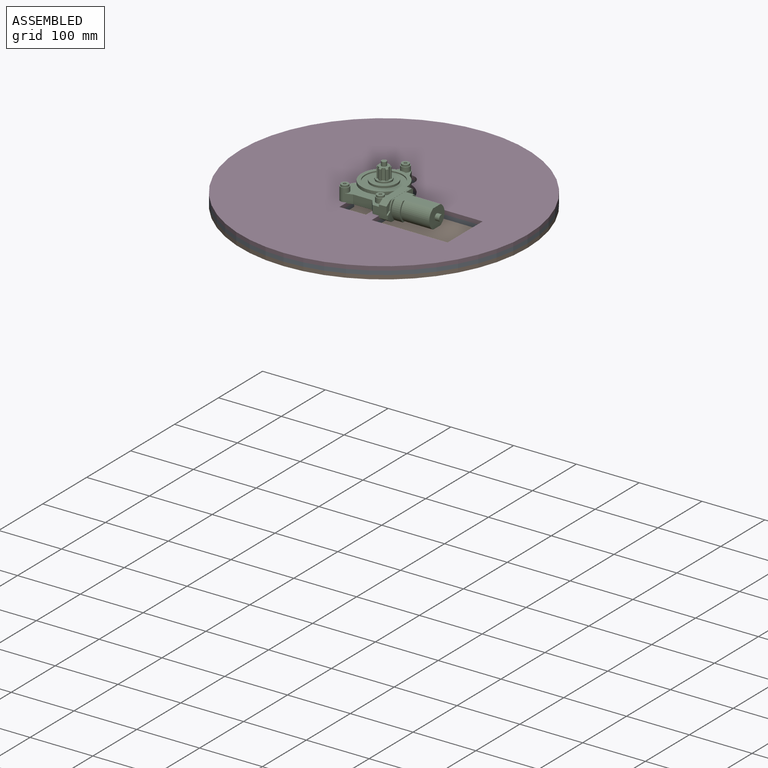
[diagram: assembled view]
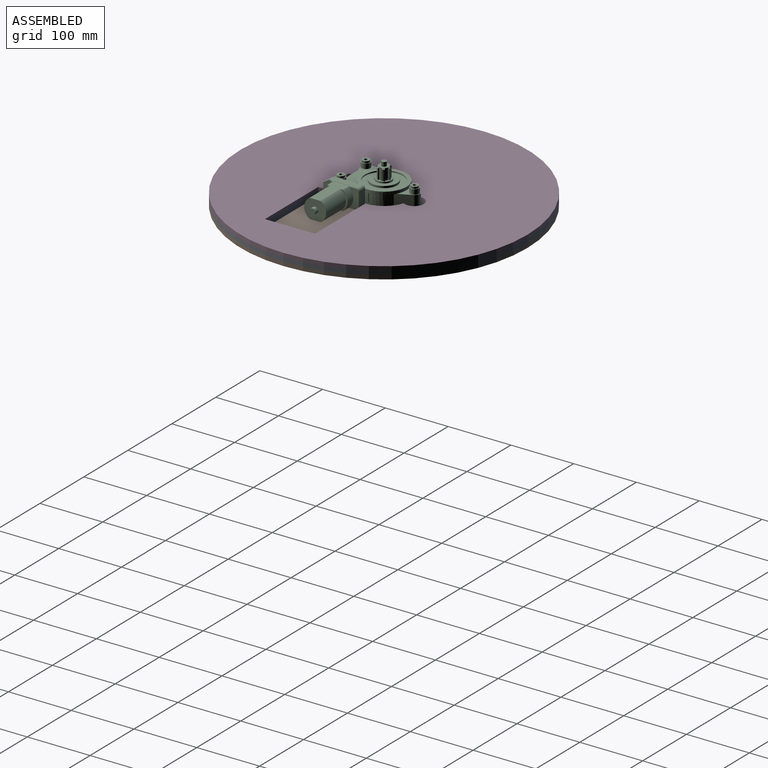
[diagram: assembled view, second angle]
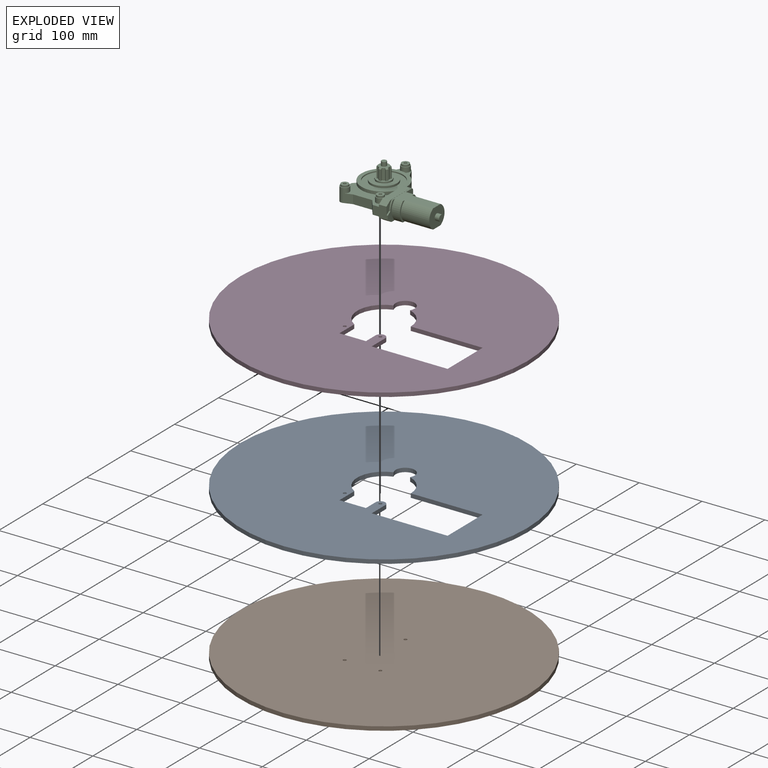
[diagram: exploded view]
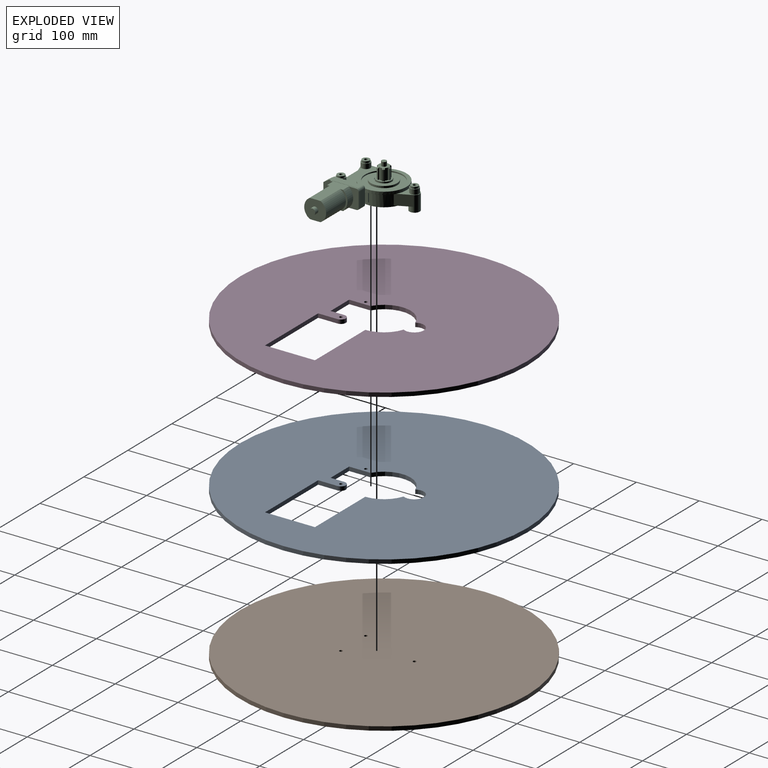
[diagram: exploded view, second angle]
ASSEMBLY  parts=4 mates=6
PART A: 16 faces, bbox 457.2x457.2x6.4 mm
  f0: plane 457.2x457.2mm, normal (0,0,1), area 146909.9mm2, adj f2,f3,f4,f5,f6,f7,f8,f9
  f1: plane 457.2x457.2mm, normal (0,0,-1), area 146909.9mm2, adj f2,f3,f4,f5,f6,f7,f8,f9
  f2: cylinder r=228.6mm len=457.2mm, axis (0,0,-1), area 9120.7mm2, adj f0,f1
  f3: cylinder r=2.51mm len=6.35mm, axis (0,0,1), area 100.3mm2, adj f0,f1
  f4: cylinder r=2.51mm len=6.35mm, axis (0,0,1), area 100.3mm2, adj f0,f1
  f5: cylinder r=7.75mm len=15.49mm, axis (0,0,1), area 154.3mm2, adj f0,f1,f6,f14
  f6: plane 30.89x6.35mm, normal (1,0,0), area 196.2mm2, adj f0,f1,f5,f7
  f7: plane 120.93x6.35mm, normal (0,1,0), area 767.9mm2, adj f0,f1,f6,f8
  f8: plane 79.61x6.35mm, normal (-1,0,0), area 505.5mm2, adj f0,f1,f7,f9
  f9: plane 114.47x6.35mm, normal (0,-1,0), area 726.9mm2, adj f0,f1,f8,f10
  f10: cylinder r=42.61mm len=40.53mm, axis (0,0,1), area 340.2mm2, adj f0,f1,f9,f11
  f11: cylinder r=15.24mm len=30.48mm, axis (0,0,1), area 407mm2, adj f0,f1,f10,f12
  f12: cylinder r=42.61mm len=77.25mm, axis (0,0,1), area 621.2mm2, adj f0,f1,f11,f13
  f13: plane 33.9x6.35mm, normal (1,0,0), area 215.3mm2, adj f0,f1,f12,f15
  f14: plane 21.88x6.35mm, normal (-1,0,0), area 138.9mm2, adj f0,f1,f5,f15
  f15: plane 42.27x6.35mm, normal (0,1,0), area 268.4mm2, adj f0,f1,f13,f14
PART B: 6 faces, bbox 457.2x457.2x6.4 mm
  f0: cylinder r=228.6mm len=457.2mm, axis (0,0,-1), area 9120.7mm2, adj f1,f2
  f1: plane 457.2x457.2mm, normal (0,0,1), area 164113.6mm2, adj f0,f3,f4,f5
  f2: plane 457.2x457.2mm, normal (0,0,-1), area 164113.6mm2, adj f0,f3,f4,f5
  f3: cylinder r=2.51mm len=6.35mm, axis (0,0,1), area 100.3mm2, adj f1,f2
  f4: cylinder r=2.51mm len=6.35mm, axis (0,0,1), area 100.3mm2, adj f1,f2
  f5: cylinder r=2.51mm len=6.35mm, axis (0,0,1), area 100.3mm2, adj f1,f2
PART C: 229 faces, bbox 151x119.9x57.9 mm
  f0: cylinder r=5mm len=10mm, axis (1,0,0), area 219.9mm2, adj f1,f4
  f1: plane 10x10mm, normal (1,0,0), area 78.5mm2, adj f0
  f2: cylinder r=17.45mm len=45mm, axis (1,0,0), area 1679.1mm2, adj f4,f8,f9,f12
  f3: cylinder r=17.45mm len=45mm, axis (1,0,0), area 1679.1mm2, adj f4,f5,f9,f12
  f4: plane 34.9x30.6mm, normal (1,0,0), area 829.3mm2, adj f0,f2,f3,f9,f12
  f5: plane 30.6x11.56mm, normal (1,0,0), area 89.8mm2, adj f3,f7,f9,f12
  f6: cylinder r=19.95mm len=30.6mm, axis (1,0,0), area 453.4mm2, adj f8,f9,f10,f12
  f7: cylinder r=19.95mm len=30.6mm, axis (1,0,0), area 453.4mm2, adj f5,f9,f11,f12
  f8: plane 30.6x11.56mm, normal (1,0,0), area 89.8mm2, adj f2,f6,f9,f12
  f9: plane 60x45.55mm, normal (0,0,-1), area 1179.2mm2, adj f2,f3,f4,f5,f6,f7,f8,f10
  f10: plane 30.6x16mm, normal (1,0,0), area 332.1mm2, adj f6,f9,f12,f16,f17,f18
  f11: plane 30.6x16mm, normal (1,0,0), area 190.5mm2, adj f7,f9,f12,f13,f14,f15,f28
  f12: plane 60x42.36mm, normal (0,0,1), area 1172.8mm2, adj f2,f3,f4,f5,f6,f7,f8,f10
  f13: plane 5.87x3.92mm, normal (0,-0.55,0.83), area 14.1mm2, adj f11,f14,f15,f19
  f14: cylinder r=22.95mm len=14.25mm, axis (1,0,0), area 31.4mm2, adj f11,f12,f13,f19
  f15: plane 6.77x2mm, normal (0,-1,0), area 13.5mm2, adj f11,f13,f19,f28
  f16: cylinder r=3.55mm len=3.55mm, axis (1,0,0), area 11.2mm2, adj f10,f12,f17,f19
  f17: plane 23.5x2mm, normal (0,1,0), area 47mm2, adj f10,f16,f18,f19
  f18: cylinder r=3.55mm len=3.55mm, axis (1,0,0), area 11.2mm2, adj f9,f10,f17,f19
  f19: plane 58x31mm, normal (1,0,0), area 127.9mm2, adj f9,f12,f13,f14,f15,f16,f17,f18
  f20: cylinder r=3.75mm len=12mm, axis (1,0,0), area 70.7mm2, adj f19,f21,f22,f29
  f21: plane 58x7.7mm, normal (-1,0,0), area 416.6mm2, adj f20,f22,f27,f28,f29,f178
  f22: plane 45.25x12mm, normal (0,0,-1), area 543mm2, adj f19,f20,f21,f28
  f23: cylinder r=3.75mm len=12mm, axis (1,0,0), area 70.7mm2, adj f19,f24,f25,f29
  f24: plane 45.25x12mm, normal (0,0,1), area 543mm2, adj f19,f23,f25,f26
  f25: plane 58x9.3mm, normal (-1,0,0), area 509.4mm2, adj f23,f24,f26,f27,f29,f46
  f26: plane 12x9mm, normal (0,-0.55,0.83), area 129.8mm2, adj f19,f24,f25,f27
  f27: plane 22x19mm, normal (0,-1,0), area 368mm2, adj f19,f21,f25,f26,f28,f46,f174,f178
  f28: plane 14x9mm, normal (0,-0.55,-0.83), area 150.2mm2, adj f9,f11,f15,f19,f21,f22,f27
  f29: plane 23.5x12mm, normal (0,1,0), area 282mm2, adj f19,f20,f21,f23,f25,f175
  f30: plane 16.3x16.3mm, normal (0,0,-1), area 189mm2, adj f34,f182
  f31: plane 37x23.67mm, normal (0,0,-1), area 315.9mm2, adj f180,f181,f182,f184
  f32: cylinder r=2.5mm len=24.8mm, axis (0,0,1), area 389.6mm2, adj f43,f178
  f33: cylinder r=2.5mm len=24.8mm, axis (0,0,1), area 389.6mm2, adj f42,f178
  f34: cylinder r=2.5mm len=36.2mm, axis (0,0,1), area 568.6mm2, adj f30,f44
  f35: cylinder r=5.95mm len=11.9mm, axis (0,0,-1), area 112.2mm2, adj f36,f44
  f36: plane 14.2x14.2mm, normal (0,0,1), area 47.1mm2, adj f35,f45
  f37: cylinder r=5.95mm len=11.9mm, axis (0,0,-1), area 112.2mm2, adj f38,f42
  f38: plane 14.2x14.2mm, normal (0,0,1), area 47.1mm2, adj f37,f41
  f39: cylinder r=5.95mm len=11.9mm, axis (0,0,-1), area 112.2mm2, adj f40,f43
  f40: plane 14.2x14.2mm, normal (0,0,1), area 47.1mm2, adj f39,f177
  f41: cylinder r=7.1mm len=14.2mm, axis (0,0,1), area 348mm2, adj f38,f46
  f42: plane 11.9x11.9mm, normal (0,0,1), area 91.6mm2, adj f33,f37
  f43: plane 11.9x11.9mm, normal (0,0,1), area 91.6mm2, adj f32,f39
  f44: plane 11.9x11.9mm, normal (0,0,1), area 91.6mm2, adj f34,f35
  f45: cylinder r=7.1mm len=14.2mm, axis (0,0,1), area 348mm2, adj f36,f183
  f46: plane 71.48x63mm, normal (0,0,1), area 1497.3mm2, adj f25,f27,f41,f170,f171,f172,f173,f174
  f47: cylinder r=33mm len=14.63mm, axis (0,0,1), area 13.1mm2, adj f48,f50,f51,f157
  f48: plane 10.4x6mm, normal (0.87,0.5,0), area 21.6mm2, adj f47,f49,f51,f157
  f49: cylinder r=21mm len=8.62mm, axis (0,0,1), area 24.7mm2, adj f48,f50,f51,f157
  f50: plane 12.01x2.74mm, normal (-1,0,0), area 21.6mm2, adj f47,f49,f51,f157
  f51: plane 14.63x14.32mm, normal (0,0,-1), area 145.6mm2, adj f47,f48,f49,f50
  f52: plane 9.23x4.5mm, normal (-1,0,0), area 34.9mm2, adj f53,f55,f56,f157
  f53: cylinder r=19mm len=7.62mm, axis (0,0,1), area 24.3mm2, adj f52,f54,f56,f157
  f54: plane 7.99x4.61mm, normal (0.87,0.5,0), area 34.9mm2, adj f53,f55,f56,f157
  f55: cylinder r=9.8mm len=4.5mm, axis (0,0,1), area 14.1mm2, adj f52,f54,f56,f169
  f56: plane 10.03x7.62mm, normal (0,0,-1), area 50.9mm2, adj f52,f53,f54,f55
  f57: cylinder r=33mm len=10.71mm, axis (0,0,1), area 13.1mm2, adj f58,f60,f61,f157
  f58: plane 10.4x6mm, normal (0.5,0.87,0), area 21.6mm2, adj f57,f59,f61,f157
  f59: cylinder r=21mm len=6.31mm, axis (0,0,1), area 24.7mm2, adj f58,f60,f61,f157
  f60: plane 10.4x6mm, normal (-0.87,-0.5,0), area 21.6mm2, adj f57,f59,f61,f157
  f61: plane 16.71x16.71mm, normal (0,0,-1), area 145.6mm2, adj f57,f58,f59,f60
  f62: plane 7.99x4.61mm, normal (-0.87,-0.5,0), area 34.9mm2, adj f63,f65,f66,f157
  f63: cylinder r=19mm len=5.58mm, axis (0,0,1), area 24.3mm2, adj f62,f64,f66,f157
  f64: plane 7.99x4.61mm, normal (0.5,0.87,0), area 34.9mm2, adj f63,f65,f66,f157
  f65: cylinder r=9.8mm len=4.5mm, axis (0,0,1), area 14.1mm2, adj f62,f64,f66,f169
  f66: plane 10.19x10.19mm, normal (0,0,-1), area 50.9mm2, adj f62,f63,f64,f65
  f67: cylinder r=33mm len=14.63mm, axis (0,0,1), area 13.1mm2, adj f68,f70,f71,f157
  f68: plane 12.01x2.74mm, normal (0,1,0), area 21.6mm2, adj f67,f69,f71,f157
  f69: cylinder r=21mm len=8.62mm, axis (0,0,1), area 24.7mm2, adj f68,f70,f71,f157
  f70: plane 10.4x6mm, normal (-0.5,-0.87,0), area 21.6mm2, adj f67,f69,f71,f157
  f71: plane 14.63x14.32mm, normal (0,0,-1), area 145.6mm2, adj f67,f68,f69,f70
  f72: plane 7.99x4.61mm, normal (-0.5,-0.87,0), area 34.9mm2, adj f73,f75,f76,f157
  f73: cylinder r=19mm len=7.62mm, axis (0,0,1), area 24.3mm2, adj f72,f74,f76,f157
  f74: plane 9.23x4.5mm, normal (0,1,0), area 34.9mm2, adj f73,f75,f76,f157
  f75: cylinder r=9.8mm len=4.5mm, axis (0,0,1), area 14.1mm2, adj f72,f74,f76,f169
  f76: plane 10.03x7.62mm, normal (0,0,-1), area 50.9mm2, adj f72,f73,f74,f75
  f77: cylinder r=33mm len=14.63mm, axis (0,0,1), area 13.1mm2, adj f78,f80,f81,f157
  f78: plane 10.4x6mm, normal (-0.5,0.87,0), area 21.6mm2, adj f77,f79,f81,f157
  f79: cylinder r=21mm len=8.62mm, axis (0,0,1), area 24.7mm2, adj f78,f80,f81,f157
  f80: plane 12.01x2.74mm, normal (0,-1,0), area 21.6mm2, adj f77,f79,f81,f157
  f81: plane 14.63x14.32mm, normal (0,0,-1), area 145.6mm2, adj f77,f78,f79,f80
  f82: plane 9.23x4.5mm, normal (0,-1,0), area 34.9mm2, adj f83,f85,f86,f157
  f83: cylinder r=19mm len=7.62mm, axis (0,0,1), area 24.3mm2, adj f82,f84,f86,f157
  f84: plane 7.99x4.61mm, normal (-0.5,0.87,0), area 34.9mm2, adj f83,f85,f86,f157
  f85: cylinder r=9.8mm len=4.5mm, axis (0,0,1), area 14.1mm2, adj f82,f84,f86,f169
  f86: plane 10.03x7.62mm, normal (0,0,-1), area 50.9mm2, adj f82,f83,f84,f85
  f87: cylinder r=33mm len=10.71mm, axis (0,0,1), area 13.1mm2, adj f88,f90,f91,f157
  f88: plane 10.4x6mm, normal (-0.87,0.5,0), area 21.6mm2, adj f87,f89,f91,f157
  f89: cylinder r=21mm len=6.31mm, axis (0,0,1), area 24.7mm2, adj f88,f90,f91,f157
  f90: plane 10.4x6mm, normal (0.5,-0.87,0), area 21.6mm2, adj f87,f89,f91,f157
  f91: plane 16.71x16.71mm, normal (0,0,-1), area 145.6mm2, adj f87,f88,f89,f90
  f92: plane 7.99x4.61mm, normal (0.5,-0.87,0), area 34.9mm2, adj f93,f95,f96,f157
  f93: cylinder r=19mm len=5.58mm, axis (0,0,1), area 24.3mm2, adj f92,f94,f96,f157
  f94: plane 7.99x4.61mm, normal (-0.87,0.5,0), area 34.9mm2, adj f93,f95,f96,f157
  f95: cylinder r=9.8mm len=4.5mm, axis (0,0,1), area 14.1mm2, adj f92,f94,f96,f169
  f96: plane 10.19x10.19mm, normal (0,0,-1), area 50.9mm2, adj f92,f93,f94,f95
  f97: cylinder r=33mm len=14.63mm, axis (0,0,1), area 13.1mm2, adj f98,f100,f101,f157
  f98: plane 12.01x2.74mm, normal (-1,0,0), area 21.6mm2, adj f97,f99,f101,f157
  f99: cylinder r=21mm len=8.62mm, axis (0,0,1), area 24.7mm2, adj f98,f100,f101,f157
  f100: plane 10.4x6mm, normal (0.87,-0.5,0), area 21.6mm2, adj f97,f99,f101,f157
  f101: plane 14.63x14.32mm, normal (0,0,-1), area 145.6mm2, adj f97,f98,f99,f100
  f102: plane 7.99x4.61mm, normal (0.87,-0.5,0), area 34.9mm2, adj f103,f105,f106,f157
  f103: cylinder r=19mm len=7.62mm, axis (0,0,1), area 24.3mm2, adj f102,f104,f106,f157
  f104: plane 9.23x4.5mm, normal (-1,0,0), area 34.9mm2, adj f103,f105,f106,f157
  f105: cylinder r=9.8mm len=4.5mm, axis (0,0,1), area 14.1mm2, adj f102,f104,f106,f169
  f106: plane 10.03x7.62mm, normal (0,0,-1), area 50.9mm2, adj f102,f103,f104,f105
  f107: cylinder r=33mm len=14.63mm, axis (0,0,1), area 13.1mm2, adj f108,f110,f111,f157
  f108: plane 10.4x6mm, normal (-0.87,-0.5,0), area 21.6mm2, adj f107,f109,f111,f157
  f109: cylinder r=21mm len=8.62mm, axis (0,0,1), area 24.7mm2, adj f108,f110,f111,f157
  f110: plane 12.01x2.74mm, normal (1,0,0), area 21.6mm2, adj f107,f109,f111,f157
  f111: plane 14.63x14.32mm, normal (0,0,-1), area 145.6mm2, adj f107,f108,f109,f110
  f112: plane 9.23x4.5mm, normal (1,0,0), area 34.9mm2, adj f113,f115,f116,f158
  f113: cylinder r=19mm len=7.62mm, axis (0,0,1), area 24.3mm2, adj f112,f114,f116,f157
  f114: plane 7.99x4.61mm, normal (-0.87,-0.5,0), area 34.9mm2, adj f113,f115,f116,f157
  f115: cylinder r=9.8mm len=4.5mm, axis (0,0,1), area 14.1mm2, adj f112,f114,f116,f169
  f116: plane 10.03x7.62mm, normal (0,0,-1), area 50.9mm2, adj f112,f113,f114,f115
  f117: cylinder r=33mm len=10.71mm, axis (0,0,1), area 13.1mm2, adj f118,f120,f121,f157
  f118: plane 10.4x6mm, normal (-0.5,-0.87,0), area 21.6mm2, adj f117,f119,f121,f157
  f119: cylinder r=21mm len=6.31mm, axis (0,0,1), area 24.7mm2, adj f118,f120,f121,f157
  f120: plane 10.4x6mm, normal (0.87,0.5,0), area 21.6mm2, adj f117,f119,f121,f157
  f121: plane 16.71x16.71mm, normal (0,0,-1), area 145.6mm2, adj f117,f118,f119,f120
  f122: plane 7.99x4.61mm, normal (0.87,0.5,0), area 34.9mm2, adj f123,f125,f126,f157
  f123: cylinder r=19mm len=5.58mm, axis (0,0,1), area 24.3mm2, adj f122,f124,f126,f157
  f124: plane 7.99x4.61mm, normal (-0.5,-0.87,0), area 34.9mm2, adj f123,f125,f126,f157
  f125: cylinder r=9.8mm len=4.5mm, axis (0,0,1), area 14.1mm2, adj f122,f124,f126,f169
  f126: plane 10.19x10.19mm, normal (0,0,-1), area 50.9mm2, adj f122,f123,f124,f125
  f127: cylinder r=33mm len=14.63mm, axis (0,0,1), area 13.1mm2, adj f128,f130,f131,f157
  f128: plane 12.01x2.74mm, normal (0,-1,0), area 21.6mm2, adj f127,f129,f131,f157
  f129: cylinder r=21mm len=8.62mm, axis (0,0,1), area 24.7mm2, adj f128,f130,f131,f157
  f130: plane 10.4x6mm, normal (0.5,0.87,0), area 21.6mm2, adj f127,f129,f131,f157
  f131: plane 14.63x14.32mm, normal (0,0,-1), area 145.6mm2, adj f127,f128,f129,f130
  f132: plane 7.99x4.61mm, normal (0.5,0.87,0), area 34.9mm2, adj f133,f135,f136,f157
  f133: cylinder r=19mm len=7.62mm, axis (0,0,1), area 24.3mm2, adj f132,f134,f136,f157
  f134: plane 9.23x4.5mm, normal (0,-1,0), area 34.9mm2, adj f133,f135,f136,f157
  f135: cylinder r=9.8mm len=4.5mm, axis (0,0,1), area 14.1mm2, adj f132,f134,f136,f169
  f136: plane 10.03x7.62mm, normal (0,0,-1), area 50.9mm2, adj f132,f133,f134,f135
  f137: cylinder r=33mm len=14.63mm, axis (0,0,1), area 13.1mm2, adj f138,f140,f141,f157
  f138: plane 10.4x6mm, normal (0.5,-0.87,0), area 21.6mm2, adj f137,f139,f141,f157
  f139: cylinder r=21mm len=8.62mm, axis (0,0,1), area 24.7mm2, adj f138,f140,f141,f157
  f140: plane 12.01x2.74mm, normal (0,1,0), area 21.6mm2, adj f137,f139,f141,f157
  f141: plane 14.63x14.32mm, normal (0,0,-1), area 145.6mm2, adj f137,f138,f139,f140
  f142: plane 9.23x4.5mm, normal (0,1,0), area 34.9mm2, adj f143,f145,f146,f157
  f143: cylinder r=19mm len=7.62mm, axis (0,0,1), area 24.3mm2, adj f142,f144,f146,f157
  f144: plane 7.99x4.61mm, normal (0.5,-0.87,0), area 34.9mm2, adj f143,f145,f146,f157
  f145: cylinder r=9.8mm len=4.5mm, axis (0,0,1), area 14.1mm2, adj f142,f144,f146,f169
  f146: plane 10.03x7.62mm, normal (0,0,-1), area 50.9mm2, adj f142,f143,f144,f145
  f147: cylinder r=33mm len=10.71mm, axis (0,0,1), area 13.1mm2, adj f148,f150,f151,f157
  f148: plane 10.4x6mm, normal (0.87,-0.5,0), area 21.6mm2, adj f147,f149,f151,f157
  f149: cylinder r=21mm len=6.31mm, axis (0,0,1), area 24.7mm2, adj f148,f150,f151,f157
  f150: plane 10.4x6mm, normal (-0.5,0.87,0), area 21.6mm2, adj f147,f149,f151,f157
  f151: plane 16.71x16.71mm, normal (0,0,-1), area 145.6mm2, adj f147,f148,f149,f150
  f152: plane 7.99x4.61mm, normal (-0.5,0.87,0), area 34.9mm2, adj f153,f155,f156,f157
  f153: cylinder r=19mm len=5.58mm, axis (0,0,1), area 24.3mm2, adj f152,f154,f156,f157
  f154: plane 7.99x4.61mm, normal (0.87,-0.5,0), area 34.9mm2, adj f153,f155,f156,f157
  f155: cylinder r=9.8mm len=4.5mm, axis (0,0,1), area 14.1mm2, adj f152,f154,f156,f169
  f156: plane 10.19x10.19mm, normal (0,0,-1), area 50.9mm2, adj f152,f153,f154,f155
  f157: cone r=21.9mm half-angle=81.1deg, axis (0,0,1), area 980.5mm2, adj f47,f48,f49,f50,f52,f53,f54,f57
  f158: cone r=21.9mm half-angle=81.1deg, axis (0,0,1), area 2.3mm2, adj f112,f157,f169
  f159: cylinder r=33mm len=14.63mm, axis (0,0,1), area 13.1mm2, adj f157,f160,f162,f163
  f160: plane 12.01x2.74mm, normal (1,0,0), area 21.6mm2, adj f157,f159,f161,f163
  f161: cylinder r=21mm len=8.62mm, axis (0,0,1), area 24.7mm2, adj f157,f160,f162,f163
  f162: plane 10.4x6mm, normal (-0.87,0.5,0), area 21.6mm2, adj f157,f159,f161,f163
  f163: plane 14.63x14.32mm, normal (0,0,-1), area 145.6mm2, adj f159,f160,f161,f162
  f164: plane 7.99x4.61mm, normal (-0.87,0.5,0), area 34.9mm2, adj f157,f165,f167,f168
  f165: cylinder r=19mm len=7.62mm, axis (0,0,1), area 24.3mm2, adj f157,f164,f166,f168
  f166: plane 9.23x4.5mm, normal (1,0,0), area 34.9mm2, adj f157,f165,f167,f168
  f167: cylinder r=9.8mm len=4.5mm, axis (0,0,1), area 14.1mm2, adj f164,f166,f168,f169
  f168: plane 10.03x7.62mm, normal (0,0,-1), area 50.9mm2, adj f164,f165,f166,f167
  f169: plane 19.6x19.6mm, normal (0,0,-1), area 301.7mm2, adj f55,f65,f75,f85,f95,f105,f115,f125
  f170: plane 14x6.29mm, normal (-0.71,0.71,0), area 124.5mm2, adj f46,f171,f178,f184,f228
  f171: plane 25x14mm, normal (-1,0,0), area 350mm2, adj f46,f170,f177,f178
  f172: plane 14x12.46mm, normal (0.33,-0.94,0), area 184.8mm2, adj f46,f173,f177,f178
  f173: plane 30.5x14mm, normal (0,-1,0), area 427mm2, adj f46,f172,f174,f178
  f174: plane 14x11.94mm, normal (-0.8,-0.6,0), area 210mm2, adj f27,f46,f173,f178
  f175: plane 14x5mm, normal (1,0,0), area 70mm2, adj f29,f46,f176,f178
  f176: plane 14x2mm, normal (0,1,0), area 28mm2, adj f175,f178,f179,f184
  f177: cylinder r=7.1mm len=21.8mm, axis (0,0,-1), area 537.6mm2, adj f40,f46,f171,f172,f178
  f178: plane 71.48x63mm, normal (0,0,-1), area 1956.4mm2, adj f21,f27,f32,f33,f170,f171,f172,f173
  f179: plane 31.74x19.01mm, normal (0,0,-1), area 72.8mm2, adj f176,f180,f184,f226
  f180: plane 23.67x17mm, normal (0.91,0.43,0), area 444.6mm2, adj f31,f179,f182,f183,f184
  f181: plane 23.67x17mm, normal (-0.91,0.43,0), area 444.6mm2, adj f31,f182,f183,f184,f228
  f182: cylinder r=8.15mm len=25.4mm, axis (0,0,-1), area 743.7mm2, adj f30,f31,f180,f181,f183
  f183: plane 33.98x25.14mm, normal (0,0,1), area 291.9mm2, adj f45,f180,f181,f182,f226
  f184: cylinder r=34mm len=68mm, axis (0,0,-1), area 2069.3mm2, adj f31,f157,f170,f176,f178,f179,f180,f181
  f185: cone r=9.07mm half-angle=45deg, axis (0,0,-1), area 10mm2, adj f186,f187,f200,f217
  f186: cylinder r=9.95mm len=16.25mm, axis (0,0,-1), area 65.4mm2, adj f185,f187,f200,f219
  f187: plane 18x1.55mm, normal (0.5,-0.87,0), area 30.7mm2, adj f185,f186,f210,f219
  f188: cone r=9.07mm half-angle=45deg, axis (0,0,-1), area 10mm2, adj f189,f190,f201,f217
  f189: cylinder r=9.95mm len=16.25mm, axis (0,0,-1), area 65.4mm2, adj f188,f190,f201,f219
  f190: plane 18x1.55mm, normal (-0.5,-0.87,0), area 30.7mm2, adj f188,f189,f208,f219
  f191: cone r=9.07mm half-angle=45deg, axis (0,0,-1), area 10mm2, adj f192,f193,f202,f217
  f192: cylinder r=9.95mm len=16.25mm, axis (0,0,-1), area 65.4mm2, adj f191,f193,f202,f219
  f193: plane 18x1.79mm, normal (-1,0,0), area 30.7mm2, adj f191,f192,f207,f219
  f194: cone r=9.07mm half-angle=45deg, axis (0,0,-1), area 10mm2, adj f195,f196,f203,f217
  f195: cylinder r=9.95mm len=16.25mm, axis (0,0,-1), area 65.4mm2, adj f194,f196,f203,f219
  f196: plane 18x1.55mm, normal (-0.5,0.87,0), area 30.7mm2, adj f194,f195,f206,f219
  f197: cone r=9.07mm half-angle=45deg, axis (0,0,-1), area 10mm2, adj f198,f199,f204,f217
  f198: cylinder r=9.95mm len=16.25mm, axis (0,0,-1), area 65.4mm2, adj f197,f199,f204,f219
  f199: plane 18x1.55mm, normal (0.5,0.87,0), area 30.7mm2, adj f197,f198,f205,f219
  f200: plane 18x1.55mm, normal (-0.5,0.87,0), area 30.7mm2, adj f185,f186,f209,f219
  f201: plane 18x1.55mm, normal (0.5,0.87,0), area 30.7mm2, adj f188,f189,f210,f219
  f202: plane 18x1.79mm, normal (1,0,0), area 30.7mm2, adj f191,f192,f208,f219
  f203: plane 18x1.55mm, normal (0.5,-0.87,0), area 30.7mm2, adj f194,f195,f207,f219
  f204: plane 18x1.55mm, normal (-0.5,-0.87,0), area 30.7mm2, adj f197,f198,f206,f219
  f205: cylinder r=8.2mm len=18mm, axis (0,0,1), area 81.8mm2, adj f199,f214,f217,f219
  f206: cylinder r=8.2mm len=18mm, axis (0,0,1), area 81.8mm2, adj f196,f204,f217,f219
  f207: cylinder r=8.2mm len=18mm, axis (0,0,1), area 81.8mm2, adj f193,f203,f217,f219
  f208: cylinder r=8.2mm len=18mm, axis (0,0,1), area 81.8mm2, adj f190,f202,f217,f219
  f209: cylinder r=8.2mm len=18mm, axis (0,0,1), area 81.8mm2, adj f200,f213,f217,f219
  f210: cylinder r=8.2mm len=18mm, axis (0,0,1), area 81.8mm2, adj f187,f201,f217,f219
  f211: cone r=9.07mm half-angle=45deg, axis (0,0,-1), area 10mm2, adj f212,f213,f214,f217
  f212: cylinder r=9.95mm len=16.25mm, axis (0,0,-1), area 65.4mm2, adj f211,f213,f214,f219
  f213: plane 18x1.79mm, normal (1,0,0), area 30.7mm2, adj f209,f211,f212,f219
  f214: plane 18x1.79mm, normal (-1,0,0), area 30.7mm2, adj f205,f211,f212,f219
  f215: cylinder r=4mm len=8mm, axis (0,0,1), area 168.4mm2, adj f216,f217
  f216: plane 8x8mm, normal (0,0,1), area 50.3mm2, adj f215
  f217: plane 16.4x16.4mm, normal (0,0,1), area 161mm2, adj f185,f188,f191,f194,f197,f205,f206,f207
  f218: cylinder r=11.9mm len=23.8mm, axis (0,0,1), area 224.3mm2, adj f219,f227
  f219: plane 23.8x23.8mm, normal (0,0,1), area 191.3mm2, adj f186,f187,f189,f190,f192,f193,f195,f196
  f220: cylinder r=12.9mm len=25.8mm, axis (0,0,1), area 97.3mm2, adj f221,f227
  f221: plane 42x42mm, normal (0,0,1), area 862.6mm2, adj f220,f222
  f222: cylinder r=21mm len=42mm, axis (0,0,-1), area 409mm2, adj f221,f224
  f223: cylinder r=30mm len=60mm, axis (0,0,-1), area 358.1mm2, adj f224,f225
  f224: plane 60x60mm, normal (0,0,1), area 1442mm2, adj f222,f223
  f225: plane 72x72mm, normal (0,0,1), area 1244.1mm2, adj f223,f226
  f226: cylinder r=36mm len=72mm, axis (0,0,-1), area 1085.7mm2, adj f46,f179,f183,f225,f228
  f227: plane 25.8x25.8mm, normal (0,0,1), area 77.9mm2, adj f218,f220
  f228: plane 50.63x19.01mm, normal (0,0,-1), area 111mm2, adj f170,f181,f184,f226
PART D: same geometry as A
PLACE A t=(147.65,-48.46,-3)mm
PLACE B t=(147.65,-48.46,-9.35)mm
PLACE C t=(147.65,-48.46,27.2)mm
PLACE D t=(147.65,-48.46,3.35)mm
MATE cylindrical D.f2 <-> A.f2  axis (0,0,-1) through (147.65,-48.46,6.53)mm
MATE cylindrical A.f2 <-> B.f0  axis (0,0,-1) through (147.65,-48.46,0.17)mm
MATE planar A.f1 <-> B.f0  axis (0,0,-1) through (141.31,-45.52,-3)mm
MATE planar C.f34 <-> B.f0  axis (0,0,-1) through (147.65,0.26,-3)mm
MATE cylindrical B.f0 <-> C.f184  axis (0,0,1) through (147.65,-48.46,-3)mm
MATE planar D.f1 <-> A.f0  axis (0,0,-1) through (141.31,-45.52,3.35)mm
